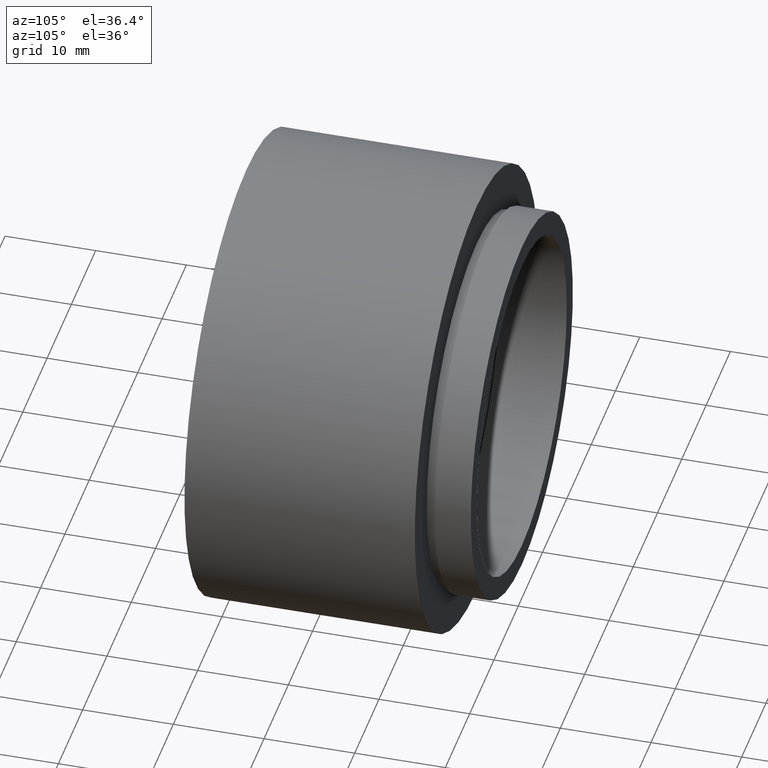
[diagram: clean part render]
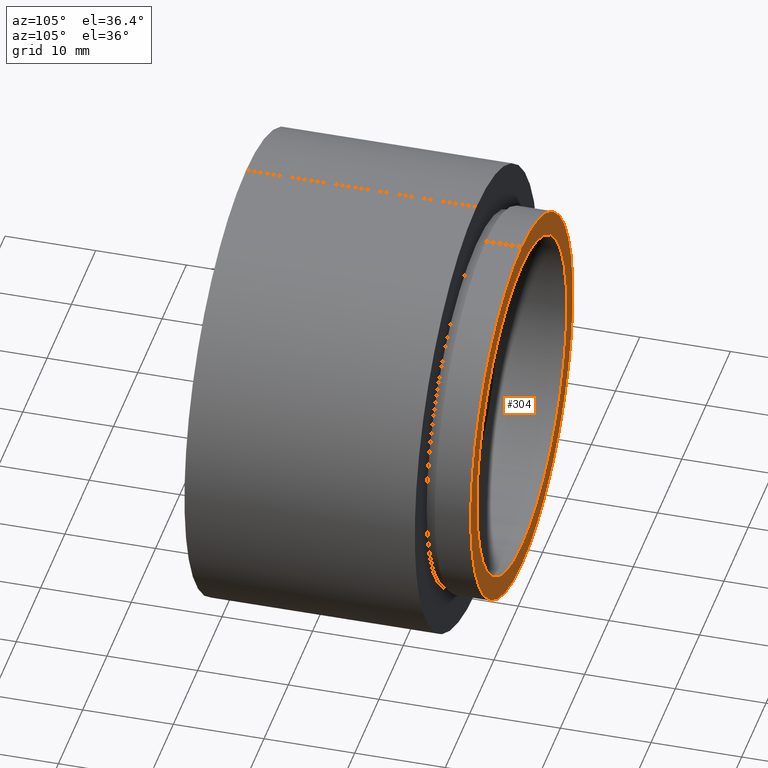
[diagram: same view with one face highlighted and labeled with its STEP entity id]
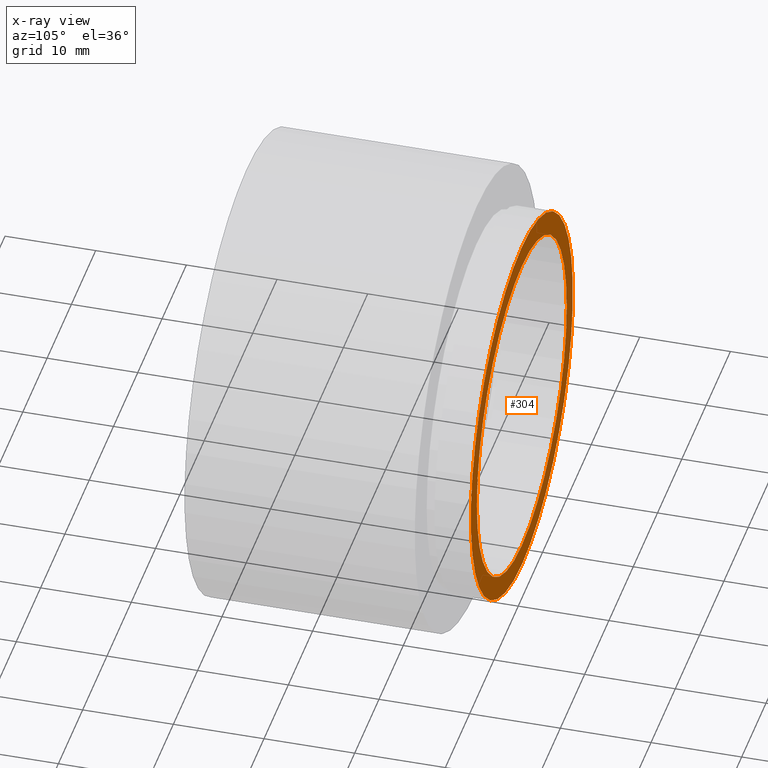
[diagram: x-ray of the same camera — body ghosted, the highlighted face saturated]
A machine part, auxiliary view. The second image highlights one B-rep face of the part: STEP entity #304.
The next image is the same camera in x-ray: the body ghosted, the highlighted face saturated — about 0% of this face is hidden behind the body in this view.
In plain terms, the highlighted planar face has unit normal (0, -1, 0).
Its self-contained STEP definition (entity closure, byte-faithful):
#37 = DIRECTION ( 'NONE',  ( 0.0000000000000000000, 0.0000000000000000000, 1.000000000000000000 ) ) ;
#38 = FACE_OUTER_BOUND ( 'NONE', #527, .T. ) ;
#44 = AXIS2_PLACEMENT_3D ( 'NONE', #129, #172, #37 ) ;
#91 = DIRECTION ( 'NONE',  ( 0.0000000000000000000, -0.0000000000000000000, -1.000000000000000000 ) ) ;
#98 = CARTESIAN_POINT ( 'NONE',  ( 0.0000000000000000000, 30.39999999999998400, 0.0000000000000000000 ) ) ;
#115 = DIRECTION ( 'NONE',  ( -0.0000000000000000000, 1.000000000000000000, -0.0000000000000000000 ) ) ;
#129 = CARTESIAN_POINT ( 'NONE',  ( 0.0000000000000000000, 30.39999999999998400, 0.0000000000000000000 ) ) ;
#135 = CARTESIAN_POINT ( 'NONE',  ( 18.50000000000001400, 30.39999999999998400, 0.0000000000000000000 ) ) ;
#141 = ORIENTED_EDGE ( 'NONE', *, *, #362, .F. ) ;
#163 = EDGE_CURVE ( 'NONE', #284, #569, #313, .T. ) ;
#171 = AXIS2_PLACEMENT_3D ( 'NONE', #135, #323, #91 ) ;
#172 = DIRECTION ( 'NONE',  ( -0.0000000000000000000, 1.000000000000000000, -0.0000000000000000000 ) ) ;
#177 = ORIENTED_EDGE ( 'NONE', *, *, #467, .T. ) ;
#244 = EDGE_LOOP ( 'NONE', ( #457, #141 ) ) ;
#255 = CIRCLE ( 'NONE', #491, 21.00000000000001800 ) ;
#256 = CARTESIAN_POINT ( 'NONE',  ( 0.0000000000000000000, 30.39999999999998400, 0.0000000000000000000 ) ) ;
#267 = CARTESIAN_POINT ( 'NONE',  ( 0.0000000000000000000, 30.39999999999998400, 18.50000000000001400 ) ) ;
#272 = PLANE ( 'NONE',  #171 ) ;
#284 = VERTEX_POINT ( 'NONE', #267 ) ;
#304 = ADVANCED_FACE ( 'NONE', ( #405, #38 ), #272, .F. ) ;
#313 = CIRCLE ( 'NONE', #44, 18.50000000000001400 ) ;
#323 = DIRECTION ( 'NONE',  ( 0.0000000000000000000, -1.000000000000000000, 0.0000000000000000000 ) ) ;
#362 = EDGE_CURVE ( 'NONE', #569, #284, #553, .T. ) ;
#377 = ORIENTED_EDGE ( 'NONE', *, *, #610, .T. ) ;
#386 = AXIS2_PLACEMENT_3D ( 'NONE', #463, #622, #621 ) ;
#398 = VERTEX_POINT ( 'NONE', #575 ) ;
#405 = FACE_BOUND ( 'NONE', #244, .T. ) ;
#438 = DIRECTION ( 'NONE',  ( 0.0000000000000000000, 0.0000000000000000000, 1.000000000000000000 ) ) ;
#457 = ORIENTED_EDGE ( 'NONE', *, *, #163, .F. ) ;
#458 = CIRCLE ( 'NONE', #489, 21.00000000000001800 ) ;
#463 = CARTESIAN_POINT ( 'NONE',  ( 0.0000000000000000000, 30.39999999999998400, 0.0000000000000000000 ) ) ;
#466 = DIRECTION ( 'NONE',  ( 0.0000000000000000000, 0.0000000000000000000, 1.000000000000000000 ) ) ;
#467 = EDGE_CURVE ( 'NONE', #495, #398, #255, .T. ) ;
#480 = CARTESIAN_POINT ( 'NONE',  ( 2.265596578422605000E-015, 30.39999999999998400, -18.50000000000001400 ) ) ;
#489 = AXIS2_PLACEMENT_3D ( 'NONE', #256, #115, #438 ) ;
#491 = AXIS2_PLACEMENT_3D ( 'NONE', #98, #624, #466 ) ;
#495 = VERTEX_POINT ( 'NONE', #584 ) ;
#527 = EDGE_LOOP ( 'NONE', ( #377, #177 ) ) ;
#553 = CIRCLE ( 'NONE', #386, 18.50000000000001400 ) ;
#569 = VERTEX_POINT ( 'NONE', #480 ) ;
#575 = CARTESIAN_POINT ( 'NONE',  ( 0.0000000000000000000, 30.39999999999998400, 21.00000000000001800 ) ) ;
#584 = CARTESIAN_POINT ( 'NONE',  ( 2.571758278209444000E-015, 30.39999999999998400, -21.00000000000001800 ) ) ;
#610 = EDGE_CURVE ( 'NONE', #398, #495, #458, .T. ) ;
#621 = DIRECTION ( 'NONE',  ( 0.0000000000000000000, 0.0000000000000000000, 1.000000000000000000 ) ) ;
#622 = DIRECTION ( 'NONE',  ( -0.0000000000000000000, 1.000000000000000000, -0.0000000000000000000 ) ) ;
#624 = DIRECTION ( 'NONE',  ( -0.0000000000000000000, 1.000000000000000000, -0.0000000000000000000 ) ) ;